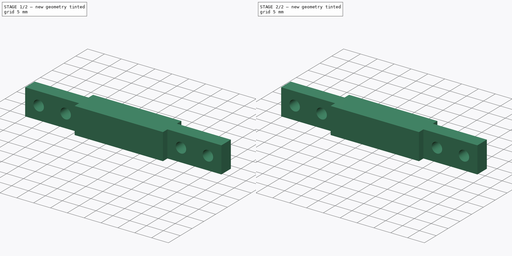
[diagram: build sequence overview — one tinted view per stage of 2, left to right]
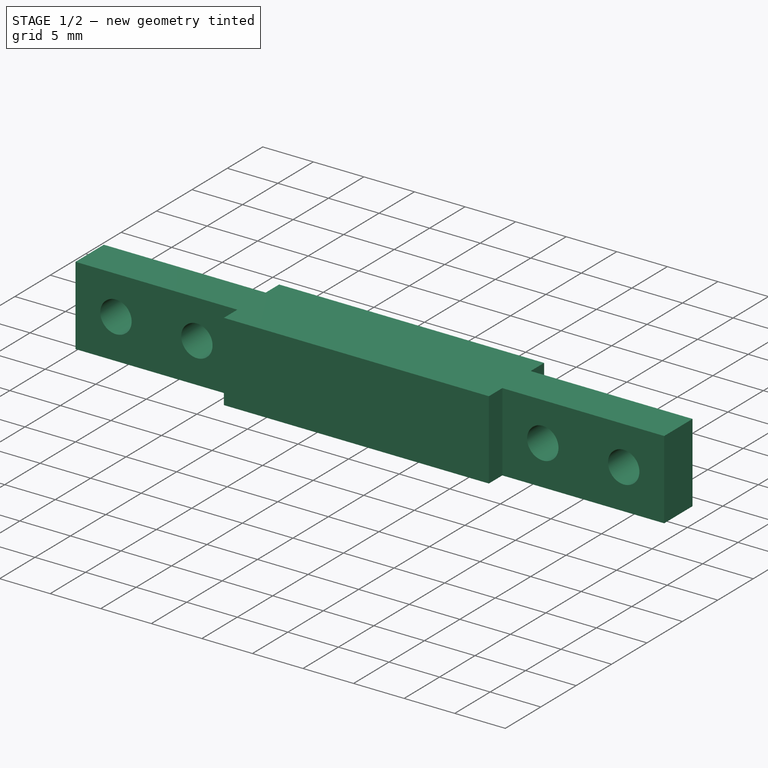
[diagram: stage 1 of 2 — iso view after this stage's code; geometry added in this stage tinted green]
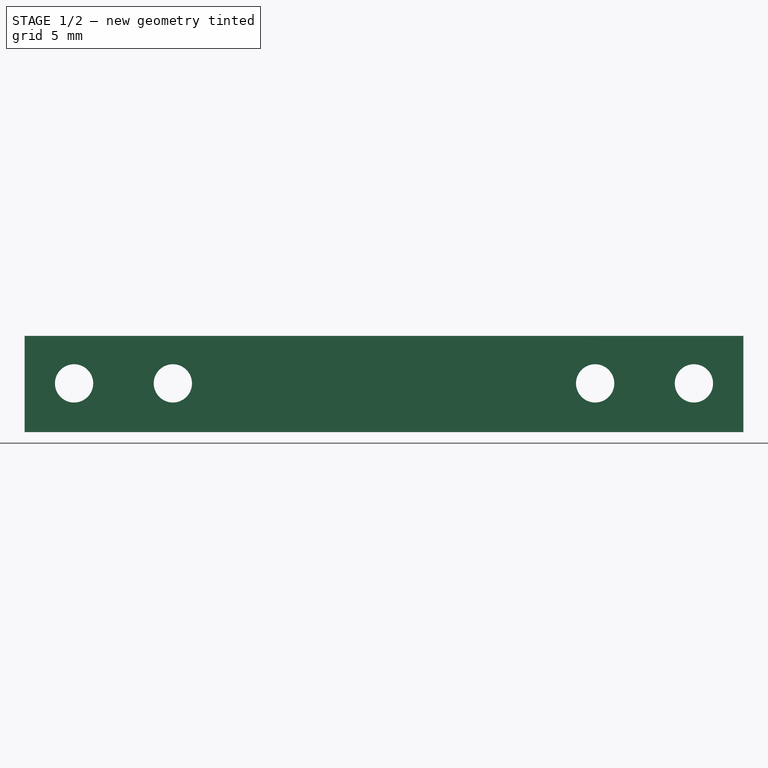
[diagram: stage 1 of 2 — front view after this stage's code; geometry added in this stage tinted green]
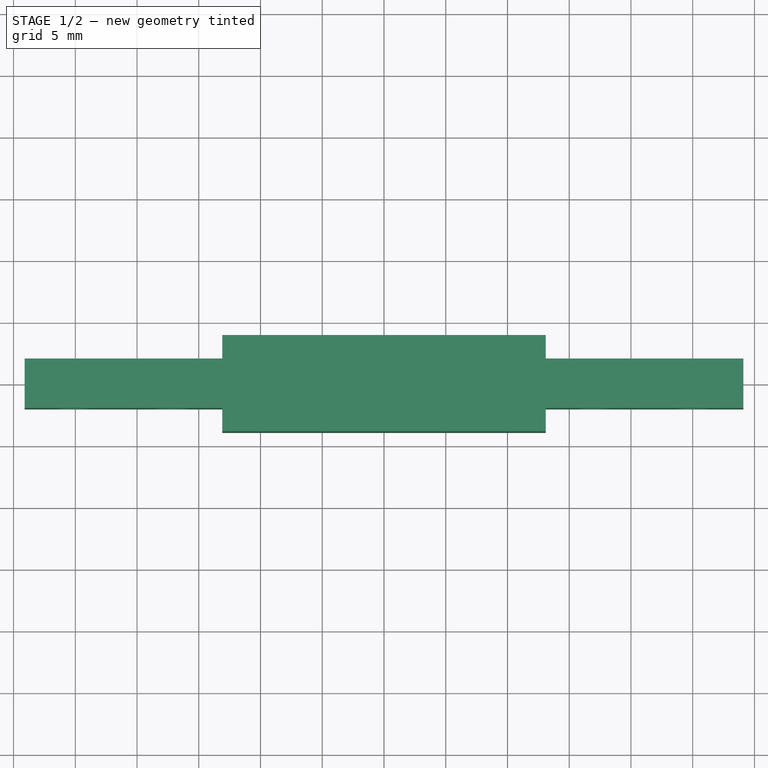
[diagram: stage 1 of 2 — top view after this stage's code; geometry added in this stage tinted green]
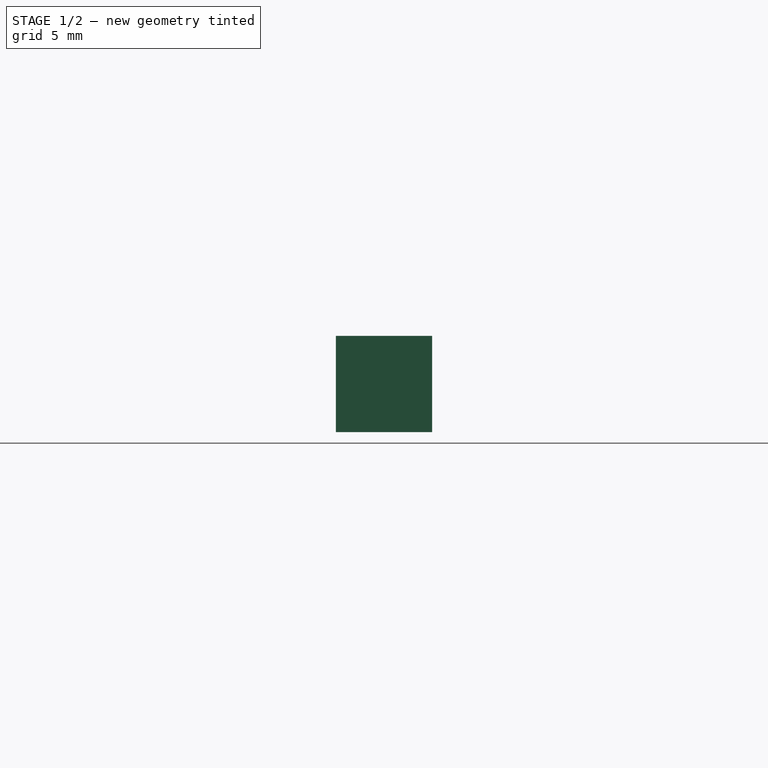
[diagram: stage 1 of 2 — right view after this stage's code; geometry added in this stage tinted green]
FCSTD DOCUMENT  (FreeCAD 0.19R)
Label: Pilier_Gauche_Emboitement
License: All rights reserved
LicenseURL: http://en.wikipedia.org/wiki/All_rights_reserved
objects: Sketcher::SketchObject×2, PartDesign::Pocket×2, PartDesign::Pad×1, PartDesign::Body×1
note: 9 computed .brp shape members not serialized (recipe doc carries the construction recipe); baked Part::Feature solids carry a one-line shape summary decoded from their .brp

FEATURE [Sketcher::SketchObject] Sketch
  FullyConstrained = true
  MapMode = 5
  Support = -> [XY_Plane]
  sketch-geometry (12):
    g0: LineSegment StartX=29.1 StartY=-2 StartZ=0 EndX=29.1 EndY=2 EndZ=0
    g1: LineSegment StartX=-29.1 StartY=-2 StartZ=0 EndX=-29.1 EndY=2 EndZ=0
    g2: LineSegment StartX=-13.1 StartY=3.9 StartZ=0 EndX=13.1 EndY=3.9 EndZ=0
    g3: LineSegment StartX=-13.1 StartY=-3.9 StartZ=0 EndX=13.1 EndY=-3.9 EndZ=0
    g4: LineSegment StartX=13.1 StartY=3.9 StartZ=0 EndX=13.1 EndY=2 EndZ=0
    g5: LineSegment StartX=13.1 StartY=-3.9 StartZ=0 EndX=13.1 EndY=-2 EndZ=0
    g6: LineSegment StartX=13.1 StartY=-2 StartZ=0 EndX=29.1 EndY=-2 EndZ=0
    g7: LineSegment StartX=13.1 StartY=2 StartZ=0 EndX=29.1 EndY=2 EndZ=0
    g8: LineSegment StartX=-29.1 StartY=2 StartZ=0 EndX=-13.1 EndY=2 EndZ=0
    g9: LineSegment StartX=-13.1 StartY=2 StartZ=0 EndX=-13.1 EndY=3.9 EndZ=0
    g10: LineSegment StartX=-13.1 StartY=-3.9 StartZ=0 EndX=-13.1 EndY=-2 EndZ=0
    g11: LineSegment StartX=-13.1 StartY=-2 StartZ=0 EndX=-29.1 EndY=-2 EndZ=0
  constraints (32):
    c: DistanceX(g1,g0) = 58.2
    c: DistanceY(g0,g0) = 4
    c: Symmetric(g0,g0,g-1)
    c: Vertical(g1)
    c: Horizontal(g2)
    c: Horizontal(g3)
    c: Symmetric(g3,g2,g-1)
    c: DistanceY(g3,g2) = 7.8
    c: DistanceX(g2,g0) = 16
    c: Coincident(g4,g2)
    c: Vertical(g4)
    c: Coincident(g5,g3)
    c: Vertical(g5)
    c: Coincident(g6,g5)
    c: Coincident(g6,g0)
    c: Horizontal(g6)
    c: Coincident(g7,g4)
    c: Coincident(g7,g0)
    c: Horizontal(g7)
    c: Coincident(g8,g1)
    c: Coincident(g9,g8)
    c: Coincident(g9,g2)
    c: Coincident(g10,g3)
    c: Vertical(g10)
    c: Coincident(g11,g10)
    c: Coincident(g11,g1)
    c: Horizontal(g11)
    c: Vertical(g9)
    c: Symmetric(g4,g8,g-2)
    c: Vertical(g10,g8)
    c: Symmetric(g1,g0,g-2)
    c: Equal(g9,g10)
FEATURE [PartDesign::Pad] Pad
  Direction = (1,1,1)
  Length = 7.8
  Length2 = 100
  Profile = -> Sketch
  Type = 0
FEATURE [Sketcher::SketchObject] Sketch001
  ExternalGeometry = -> [Pad]
  FullyConstrained = true
  MapMode = 5
  Placement = pos=(0,-2,0) rot=(1,0,0;1.5708rad)
  Support = -> [Pad]
  sketch-geometry (4):
    g0: Circle CenterX=-25.1 CenterY=3.95 CenterZ=0 NormalX=0 NormalY=0 NormalZ=1 AngleXU=0 Radius=1.55
    g1: Circle CenterX=-17.1 CenterY=3.95 CenterZ=0 NormalX=0 NormalY=0 NormalZ=1 AngleXU=0 Radius=1.55
    g2: Circle CenterX=17.1 CenterY=3.95 CenterZ=0 NormalX=0 NormalY=0 NormalZ=1 AngleXU=0 Radius=1.55
    g3: Circle CenterX=25.1 CenterY=3.95 CenterZ=0 NormalX=0 NormalY=0 NormalZ=1 AngleXU=0 Radius=1.55
  constraints (10):
    c: Equal(g3,g2)
    c: Equal(g2,g1)
    c: Equal(g1,g0)
    c: Diameter(g3) = 3.1
    c: Horizontal(g0,g1)
    c: DistanceX(g3,g-3) = 4
    c: DistanceX(g2,g3) = 8
    c: Symmetric(g3,g0,g-2)
    c: Symmetric(g1,g2,g-2)
    c: DistanceY(g-1,g3) = 3.95
FEATURE [PartDesign::Pocket] Pocket
  BaseFeature = -> Pad
  Length = 5
  Length2 = 100
  Profile = -> Sketch001
  Type = 1
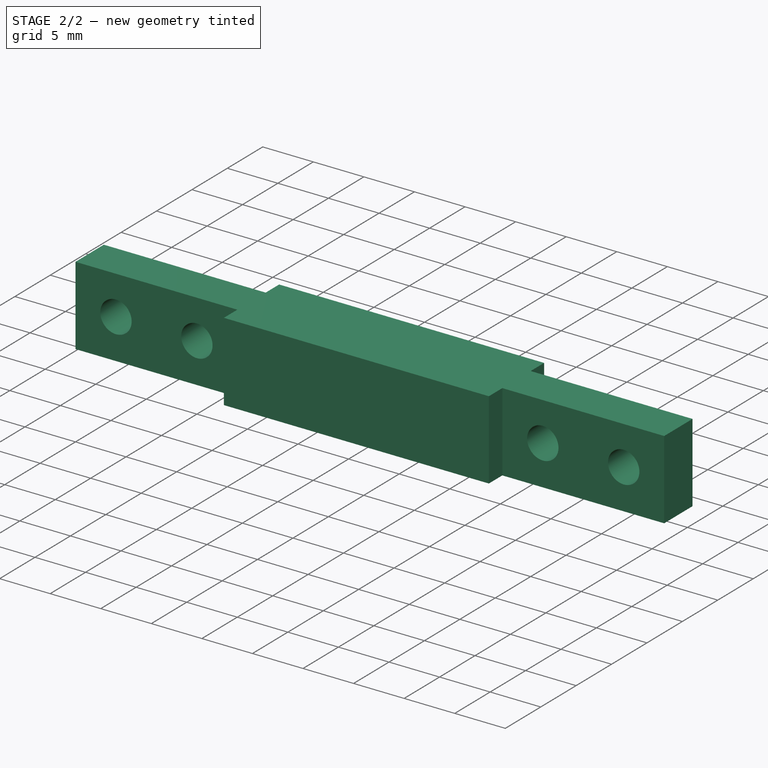
[diagram: stage 2 of 2 — iso view after this stage's code; geometry added in this stage tinted green]
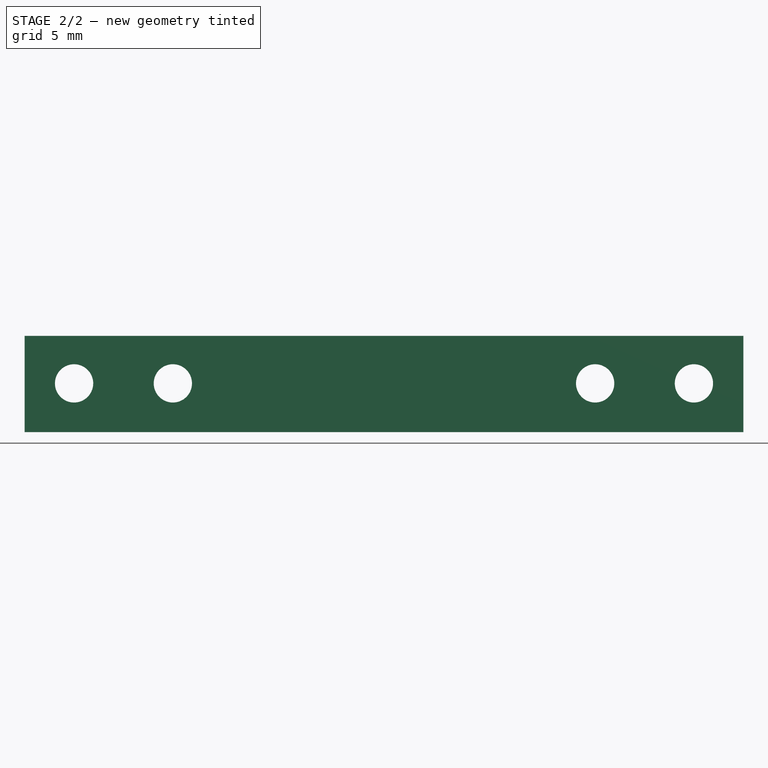
[diagram: stage 2 of 2 — front view after this stage's code; geometry added in this stage tinted green]
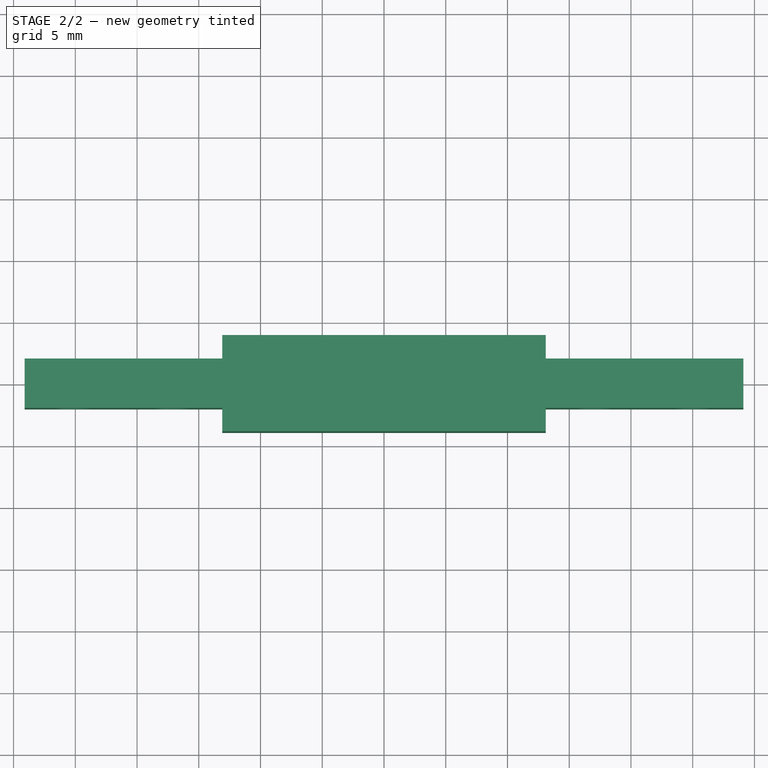
[diagram: stage 2 of 2 — top view after this stage's code; geometry added in this stage tinted green]
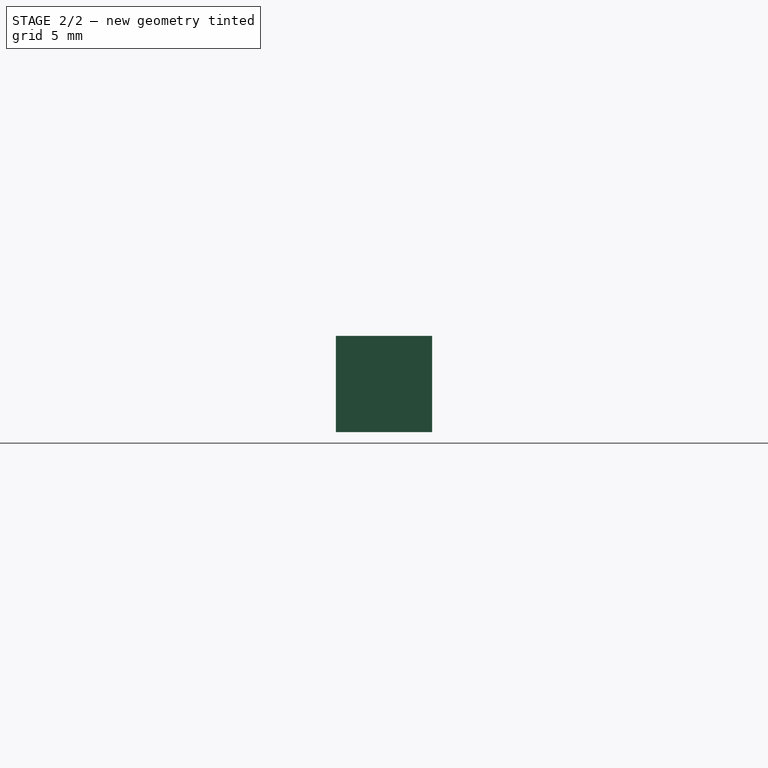
[diagram: stage 2 of 2 — right view after this stage's code; geometry added in this stage tinted green]
FEATURE [PartDesign::Pocket] Pocket001
  BaseFeature = -> Pocket
  Length = 5
  Length2 = 100
  Profile = -> Sketch001
  Type = 1
FEATURE [PartDesign::Body] Body
  Group = -> [Sketch,Pad,Sketch001,Pocket,Pocket001]
  Origin = -> Origin
  Tip = -> Pocket001
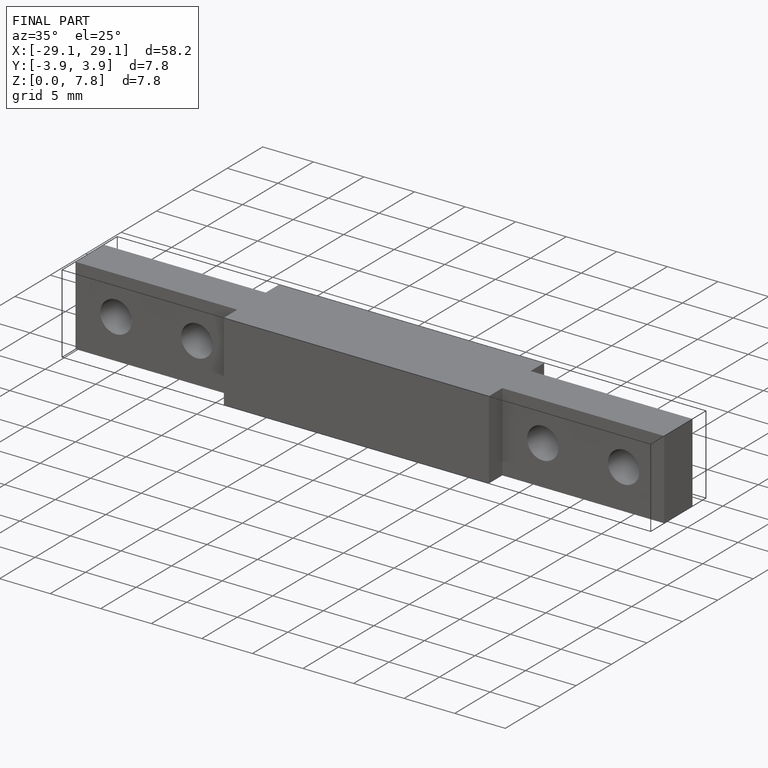
[diagram: finished part — iso view with bounding-box wireframe]
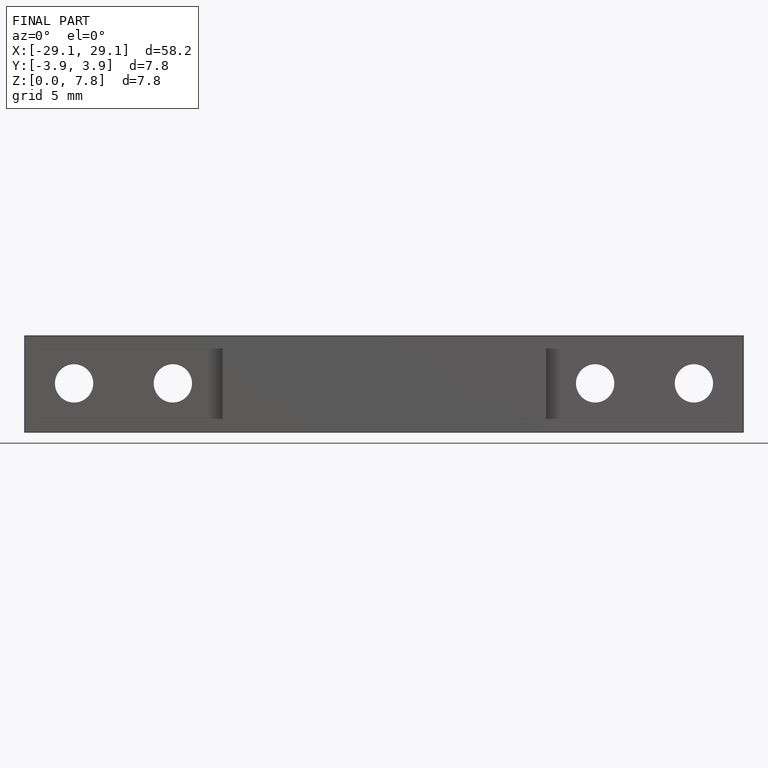
[diagram: finished part — front view with bounding-box wireframe]
